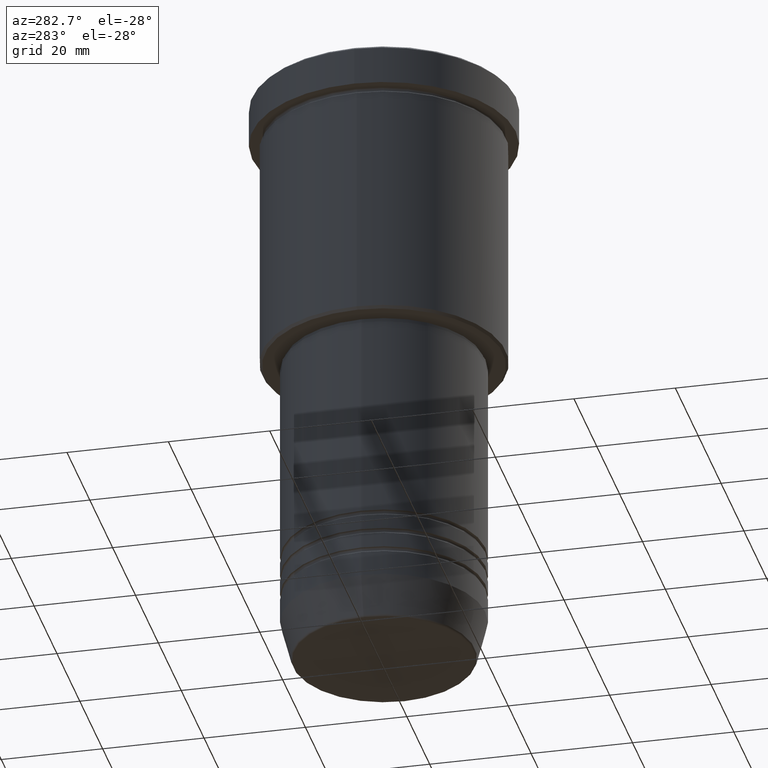
[diagram: clean part render]
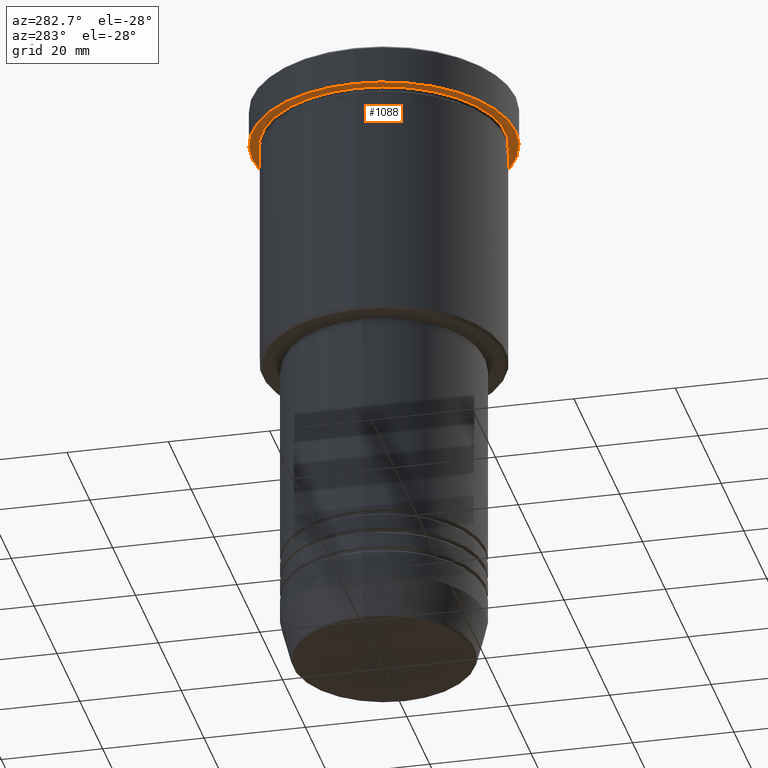
[diagram: same view with one face highlighted and labeled with its STEP entity id]
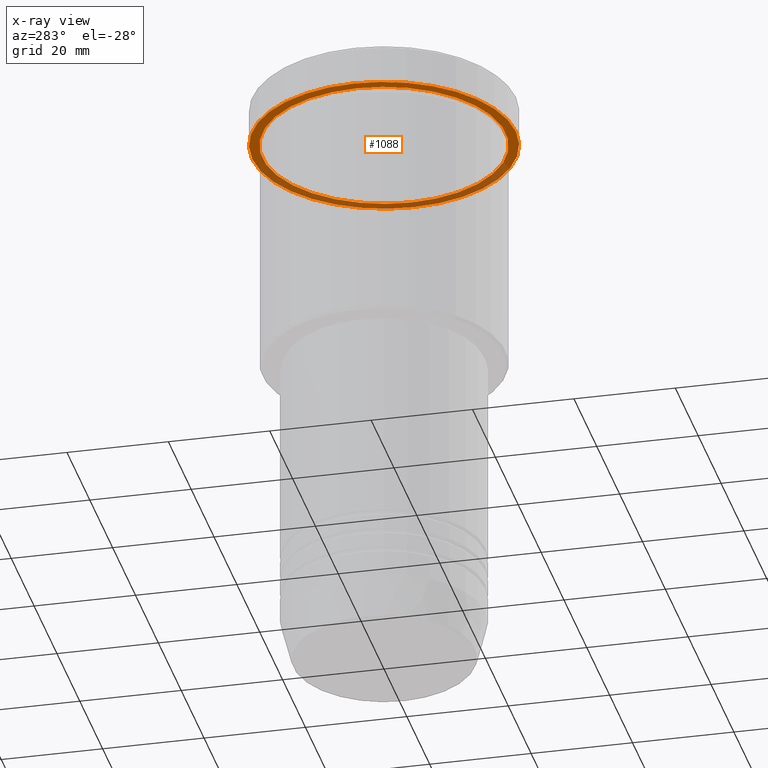
[diagram: x-ray of the same camera — body ghosted, the highlighted face saturated]
A machine part, auxiliary view. The second image highlights one B-rep face of the part: STEP entity #1088.
The next image is the same camera in x-ray: the body ghosted, the highlighted face saturated — about 39% of this face is hidden behind the body in this view.
In plain terms, the highlighted planar face has unit normal (0, 0, -1).
Its self-contained STEP definition (entity closure, byte-faithful):
#48 = CARTESIAN_POINT ( 'NONE',  ( 0.000000000000000000, 0.000000000000000000, -7.999999999999992895 ) ) ;
#107 = CARTESIAN_POINT ( 'NONE',  ( 24.00000000000000000, 2.939152317953647894E-15, -7.999999999999992895 ) ) ;
#166 = CIRCLE ( 'NONE', #983, 24.00000000000000000 ) ;
#181 = VERTEX_POINT ( 'NONE', #434 ) ;
#237 = CIRCLE ( 'NONE', #473, 26.00000000000000000 ) ;
#245 = DIRECTION ( 'NONE',  ( -0.000000000000000000, -0.000000000000000000, 1.000000000000000000 ) ) ;
#259 = DIRECTION ( 'NONE',  ( -0.000000000000000000, -0.000000000000000000, 1.000000000000000000 ) ) ;
#278 = AXIS2_PLACEMENT_3D ( 'NONE', #48, #245, #901 ) ;
#279 = VERTEX_POINT ( 'NONE', #107 ) ;
#319 = DIRECTION ( 'NONE',  ( 1.000000000000000000, 0.000000000000000000, 0.000000000000000000 ) ) ;
#320 = CARTESIAN_POINT ( 'NONE',  ( 0.000000000000000000, 26.00000000000000000, -7.999999999999992895 ) ) ;
#377 = CARTESIAN_POINT ( 'NONE',  ( -26.00000000000000000, 3.184081677783118191E-15, -7.999999999999992895 ) ) ;
#413 = FACE_BOUND ( 'NONE', #719, .T. ) ;
#415 = DIRECTION ( 'NONE',  ( -1.000000000000000000, 0.000000000000000000, 0.000000000000000000 ) ) ;
#418 = DIRECTION ( 'NONE',  ( 0.000000000000000000, 0.000000000000000000, -1.000000000000000000 ) ) ;
#434 = CARTESIAN_POINT ( 'NONE',  ( -24.00000000000000000, 0.000000000000000000, -7.999999999999992895 ) ) ;
#471 = AXIS2_PLACEMENT_3D ( 'NONE', #1182, #259, #795 ) ;
#473 = AXIS2_PLACEMENT_3D ( 'NONE', #1134, #676, #319 ) ;
#501 = EDGE_CURVE ( 'NONE', #725, #609, #621, .T. ) ;
#506 = DIRECTION ( 'NONE',  ( -1.000000000000000000, 0.000000000000000000, -0.000000000000000000 ) ) ;
#551 = EDGE_CURVE ( 'NONE', #181, #279, #657, .T. ) ;
#595 = ORIENTED_EDGE ( 'NONE', *, *, #711, .T. ) ;
#609 = VERTEX_POINT ( 'NONE', #377 ) ;
#621 = CIRCLE ( 'NONE', #471, 26.00000000000000000 ) ;
#657 = CIRCLE ( 'NONE', #278, 24.00000000000000000 ) ;
#676 = DIRECTION ( 'NONE',  ( -0.000000000000000000, -0.000000000000000000, 1.000000000000000000 ) ) ;
#680 = CARTESIAN_POINT ( 'NONE',  ( 0.000000000000000000, 0.000000000000000000, -7.999999999999992895 ) ) ;
#684 = PLANE ( 'NONE',  #1125 ) ;
#706 = ORIENTED_EDGE ( 'NONE', *, *, #551, .T. ) ;
#711 = EDGE_CURVE ( 'NONE', #279, #181, #166, .T. ) ;
#719 = EDGE_LOOP ( 'NONE', ( #706, #595 ) ) ;
#725 = VERTEX_POINT ( 'NONE', #1142 ) ;
#795 = DIRECTION ( 'NONE',  ( 1.000000000000000000, 0.000000000000000000, 0.000000000000000000 ) ) ;
#901 = DIRECTION ( 'NONE',  ( -1.000000000000000000, 0.000000000000000000, 0.000000000000000000 ) ) ;
#955 = EDGE_CURVE ( 'NONE', #609, #725, #237, .T. ) ;
#976 = DIRECTION ( 'NONE',  ( -0.000000000000000000, -0.000000000000000000, 1.000000000000000000 ) ) ;
#983 = AXIS2_PLACEMENT_3D ( 'NONE', #680, #976, #415 ) ;
#1048 = ORIENTED_EDGE ( 'NONE', *, *, #955, .F. ) ;
#1088 = ADVANCED_FACE ( 'NONE', ( #413, #1141 ), #684, .T. ) ;
#1120 = EDGE_LOOP ( 'NONE', ( #1177, #1048 ) ) ;
#1125 = AXIS2_PLACEMENT_3D ( 'NONE', #320, #418, #506 ) ;
#1134 = CARTESIAN_POINT ( 'NONE',  ( 0.000000000000000000, 0.000000000000000000, -7.999999999999992895 ) ) ;
#1141 = FACE_OUTER_BOUND ( 'NONE', #1120, .T. ) ;
#1142 = CARTESIAN_POINT ( 'NONE',  ( 26.00000000000000000, 0.000000000000000000, -7.999999999999992895 ) ) ;
#1177 = ORIENTED_EDGE ( 'NONE', *, *, #501, .F. ) ;
#1182 = CARTESIAN_POINT ( 'NONE',  ( 0.000000000000000000, 0.000000000000000000, -7.999999999999992895 ) ) ;